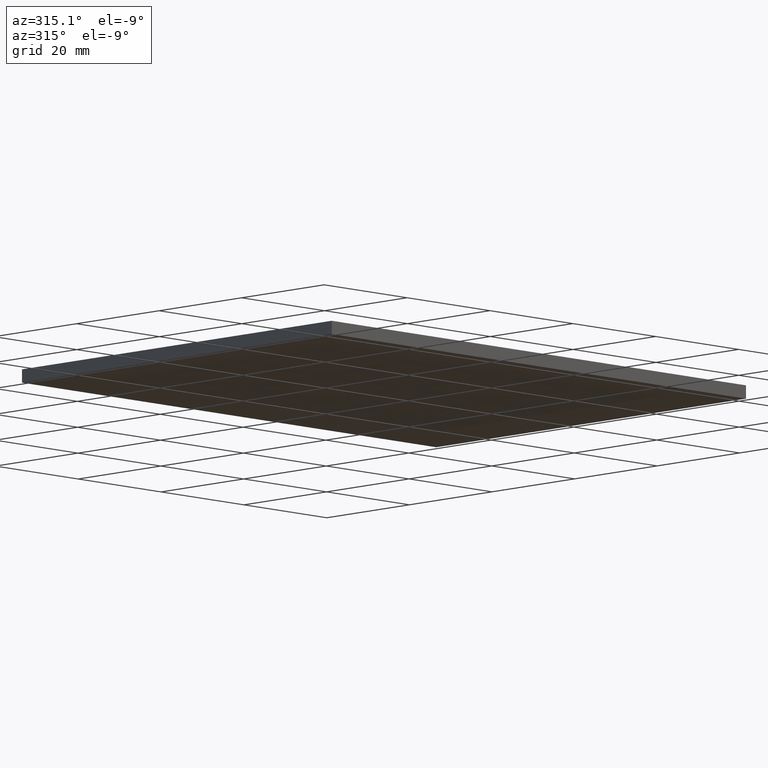
[diagram: clean part render]
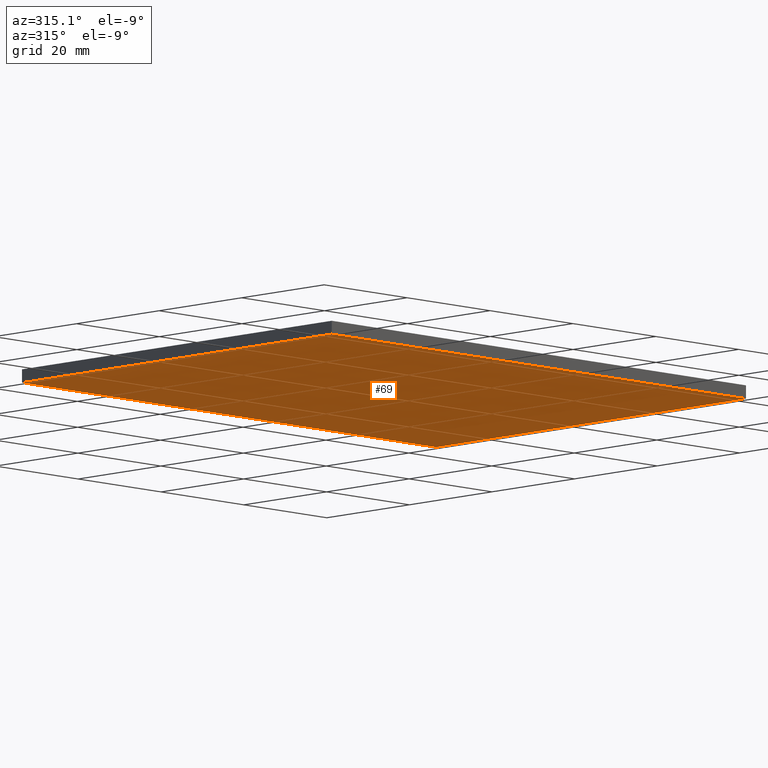
[diagram: same view with one face highlighted and labeled with its STEP entity id]
A machine part, auxiliary view. The second image highlights one B-rep face of the part: STEP entity #69.
In plain terms, the highlighted planar face has unit normal (0, 0, 1).
Its self-contained STEP definition (entity closure, byte-faithful):
#8 = CARTESIAN_POINT ( 'NONE',  ( 267.2299678845673200, 160.6264836690531900, 0.0000000000000000000 ) ) ;
#12 = VECTOR ( 'NONE', #70, 1000.000000000000000 ) ;
#13 = CARTESIAN_POINT ( 'NONE',  ( 267.2628910959036800, 85.62648366905317200, 0.0000000000000000000 ) ) ;
#16 = DIRECTION ( 'NONE',  ( 1.000000000000000000, -2.775639150277182100E-016, 0.0000000000000000000 ) ) ;
#19 = ORIENTED_EDGE ( 'NONE', *, *, #122, .F. ) ;
#40 = DIRECTION ( 'NONE',  ( 1.000000000000000000, 0.0000000000000000000, -0.0000000000000000000 ) ) ;
#51 = VERTEX_POINT ( 'NONE', #8 ) ;
#59 = CARTESIAN_POINT ( 'NONE',  ( 267.2299678845673200, 160.6264836690531900, 0.0000000000000000000 ) ) ;
#62 = ORIENTED_EDGE ( 'NONE', *, *, #116, .F. ) ;
#67 = FACE_OUTER_BOUND ( 'NONE', #201, .T. ) ;
#69 = ADVANCED_FACE ( 'NONE', ( #67 ), #148, .F. ) ;
#70 = DIRECTION ( 'NONE',  ( -1.000000000000000000, -2.775557561562892800E-016, -0.0000000000000000000 ) ) ;
#75 = LINE ( 'NONE', #189, #139 ) ;
#77 = AXIS2_PLACEMENT_3D ( 'NONE', #178, #99, #40 ) ;
#89 = CARTESIAN_POINT ( 'NONE',  ( 167.2299678845673700, 160.6264836690531600, 0.0000000000000000000 ) ) ;
#95 = ORIENTED_EDGE ( 'NONE', *, *, #158, .F. ) ;
#96 = VECTOR ( 'NONE', #16, 1000.000000000000000 ) ;
#99 = DIRECTION ( 'NONE',  ( 0.0000000000000000000, 0.0000000000000000000, 1.000000000000000000 ) ) ;
#105 = DIRECTION ( 'NONE',  ( 0.0004781688540799851800, -0.9999998856772670500, 0.0000000000000000000 ) ) ;
#106 = CARTESIAN_POINT ( 'NONE',  ( 167.2658305527232900, 85.62648366905320100, 0.0000000000000000000 ) ) ;
#114 = VERTEX_POINT ( 'NONE', #13 ) ;
#116 = EDGE_CURVE ( 'NONE', #121, #159, #75, .T. ) ;
#121 = VERTEX_POINT ( 'NONE', #136 ) ;
#122 = EDGE_CURVE ( 'NONE', #51, #121, #135, .T. ) ;
#123 = ORIENTED_EDGE ( 'NONE', *, *, #141, .F. ) ;
#135 = LINE ( 'NONE', #89, #12 ) ;
#136 = CARTESIAN_POINT ( 'NONE',  ( 167.2299678845673700, 160.6264836690531600, 0.0000000000000000000 ) ) ;
#139 = VECTOR ( 'NONE', #105, 999.9999999999998900 ) ;
#141 = EDGE_CURVE ( 'NONE', #114, #51, #171, .T. ) ;
#148 = PLANE ( 'NONE',  #77 ) ;
#151 = DIRECTION ( 'NONE',  ( -0.0004389761088560449900, 0.9999999036499833700, -0.0000000000000000000 ) ) ;
#158 = EDGE_CURVE ( 'NONE', #159, #114, #202, .T. ) ;
#159 = VERTEX_POINT ( 'NONE', #164 ) ;
#164 = CARTESIAN_POINT ( 'NONE',  ( 167.2658305527232900, 85.62648366905320100, 0.0000000000000000000 ) ) ;
#171 = LINE ( 'NONE', #59, #200 ) ;
#178 = CARTESIAN_POINT ( 'NONE',  ( 0.0000000000000000000, 0.0000000000000000000, 0.0000000000000000000 ) ) ;
#189 = CARTESIAN_POINT ( 'NONE',  ( 167.2299678845673700, 160.6264836690531600, 0.0000000000000000000 ) ) ;
#200 = VECTOR ( 'NONE', #151, 999.9999999999998900 ) ;
#201 = EDGE_LOOP ( 'NONE', ( #62, #19, #123, #95 ) ) ;
#202 = LINE ( 'NONE', #106, #96 ) ;